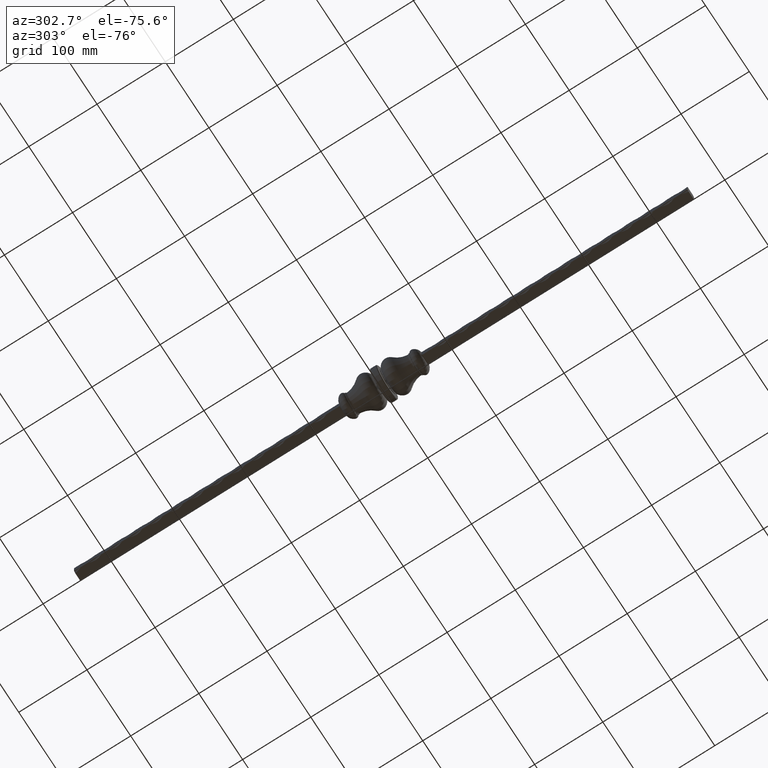
[diagram: clean part render]
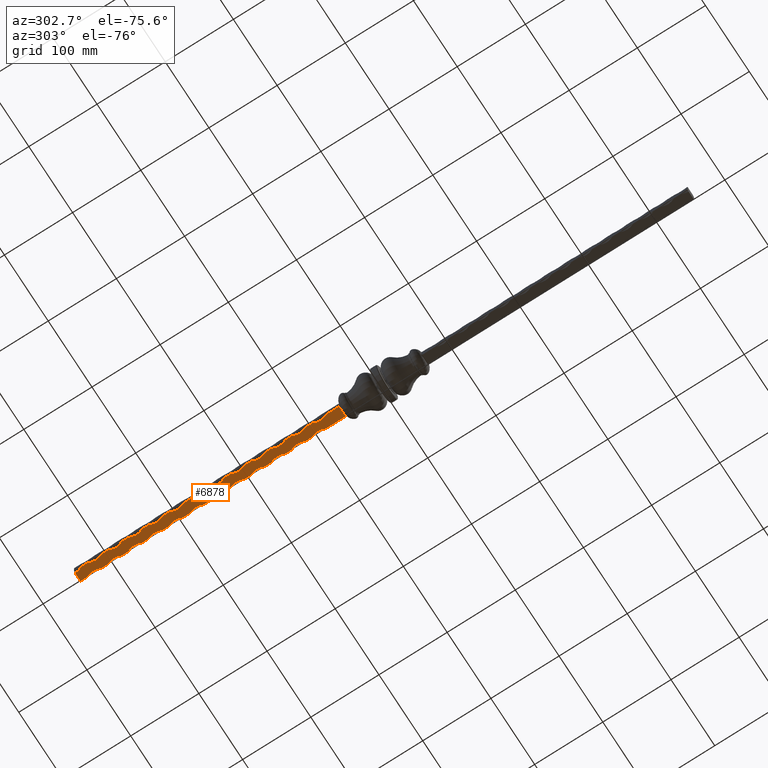
[diagram: same view with one face highlighted and labeled with its STEP entity id]
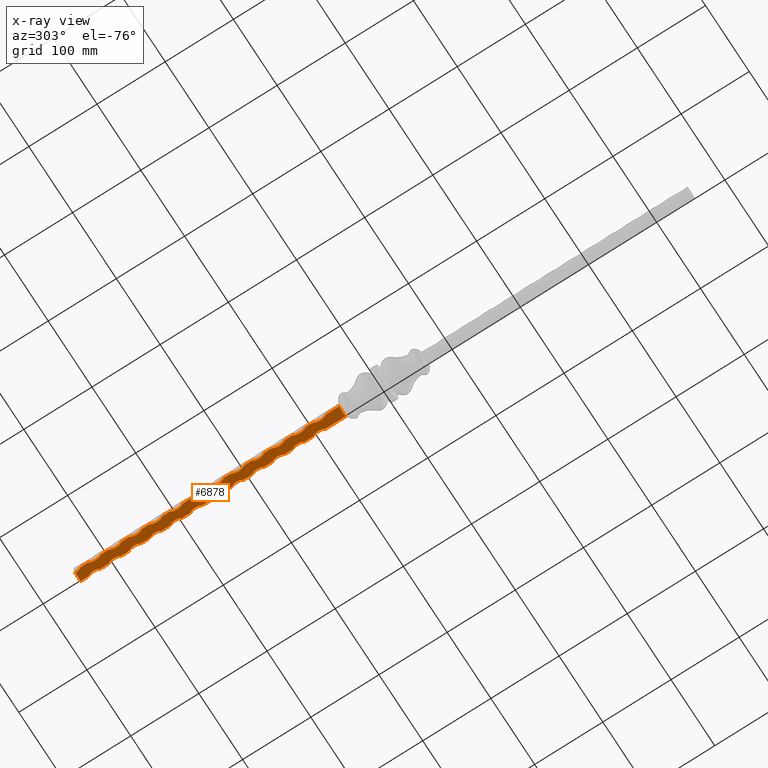
[diagram: x-ray of the same camera — body ghosted, the highlighted face saturated]
A machine part, auxiliary view. The second image highlights one B-rep face of the part: STEP entity #6878.
The next image is the same camera in x-ray: the body ghosted, the highlighted face saturated — about 0% of this face is hidden behind the body in this view.
In plain terms, the highlighted planar face has unit normal (0, 0, 1).
Its self-contained STEP definition (entity closure, byte-faithful):
#29 = VERTEX_POINT ( 'NONE', #25393 ) ;
#81 = CARTESIAN_POINT ( 'NONE',  ( 26.25000000000003197, 370.0000000000000000, -7.500000000000000000 ) ) ;
#180 = ORIENTED_EDGE ( 'NONE', *, *, #19650, .T. ) ;
#199 = CARTESIAN_POINT ( 'NONE',  ( -7.500000000000000000, 169.9999999999999716, -7.500000000000000000 ) ) ;
#213 = LINE ( 'NONE', #1538, #23224 ) ;
#237 = ORIENTED_EDGE ( 'NONE', *, *, #9193, .F. ) ;
#349 = VECTOR ( 'NONE', #23992, 1000.000000000000000 ) ;
#421 = CIRCLE ( 'NONE', #2246, 21.25000000000003553 ) ;
#475 = ORIENTED_EDGE ( 'NONE', *, *, #20177, .F. ) ;
#479 = CIRCLE ( 'NONE', #1123, 21.25000000000003553 ) ;
#539 = CARTESIAN_POINT ( 'NONE',  ( -5.587195937505667231, 61.12594891179882239, -7.500000000000001776 ) ) ;
#550 = LINE ( 'NONE', #20431, #11000 ) ;
#555 = ORIENTED_EDGE ( 'NONE', *, *, #1211, .T. ) ;
#562 = DIRECTION ( 'NONE',  ( 1.000000000000000000, 0.000000000000000000, 0.000000000000000000 ) ) ;
#617 = CARTESIAN_POINT ( 'NONE',  ( -26.25000000000003197, 120.0000000000000000, -7.500000000000000000 ) ) ;
#673 = VECTOR ( 'NONE', #21003, 1000.000000000000000 ) ;
#694 = CARTESIAN_POINT ( 'NONE',  ( -7.500000000000000000, 260.0000000000000000, -7.500000000000000000 ) ) ;
#704 = CIRCLE ( 'NONE', #5637, 21.25000000000003197 ) ;
#738 = CARTESIAN_POINT ( 'NONE',  ( 7.500000000000000000, 450.0000000000000000, -7.500000000000001776 ) ) ;
#852 = ORIENTED_EDGE ( 'NONE', *, *, #15751, .F. ) ;
#857 = ORIENTED_EDGE ( 'NONE', *, *, #27648, .F. ) ;
#992 = AXIS2_PLACEMENT_3D ( 'NONE', #14732, #27848, #23181 ) ;
#1035 = DIRECTION ( 'NONE',  ( -0.000000000000000000, -0.000000000000000000, -1.000000000000000000 ) ) ;
#1123 = AXIS2_PLACEMENT_3D ( 'NONE', #81, #15170, #2441 ) ;
#1131 = ORIENTED_EDGE ( 'NONE', *, *, #23934, .T. ) ;
#1146 = CARTESIAN_POINT ( 'NONE',  ( -4.920602893082760332, 61.20000000000000284, -7.500000000000002665 ) ) ;
#1179 = DIRECTION ( 'NONE',  ( 1.000000000000000000, 0.000000000000000000, 0.000000000000000000 ) ) ;
#1205 = DIRECTION ( 'NONE',  ( 0.000000000000000000, 0.000000000000000000, 1.000000000000000000 ) ) ;
#1211 = EDGE_CURVE ( 'NONE', #25127, #10585, #18209, .T. ) ;
#1291 = ORIENTED_EDGE ( 'NONE', *, *, #16687, .F. ) ;
#1349 = CARTESIAN_POINT ( 'NONE',  ( -7.500000000000001776, 450.0000000000000000, -7.500000000000001776 ) ) ;
#1365 = DIRECTION ( 'NONE',  ( 0.000000000000000000, 0.000000000000000000, 1.000000000000000000 ) ) ;
#1395 = DIRECTION ( 'NONE',  ( 1.000000000000000000, 0.000000000000000000, 0.000000000000000000 ) ) ;
#1456 = ORIENTED_EDGE ( 'NONE', *, *, #11879, .F. ) ;
#1538 = CARTESIAN_POINT ( 'NONE',  ( 7.500000000000000000, 450.0000000000000000, -7.500000000000001776 ) ) ;
#1592 = VECTOR ( 'NONE', #17915, 1000.000000000000000 ) ;
#1603 = CARTESIAN_POINT ( 'NONE',  ( -7.500000000000000000, 319.9999999999999432, -7.500000000000000000 ) ) ;
#1630 = DIRECTION ( 'NONE',  ( -1.000000000000000000, -0.000000000000000000, -0.000000000000000000 ) ) ;
#1652 = CARTESIAN_POINT ( 'NONE',  ( -7.500000000000000000, 229.9999999999999716, -7.500000000000000000 ) ) ;
#1719 = CARTESIAN_POINT ( 'NONE',  ( -7.500000000000000000, 159.9999999999999716, -7.500000000000000000 ) ) ;
#1749 = ORIENTED_EDGE ( 'NONE', *, *, #12424, .T. ) ;
#1804 = ORIENTED_EDGE ( 'NONE', *, *, #14973, .T. ) ;
#1880 = CIRCLE ( 'NONE', #13794, 21.25000000000003197 ) ;
#2005 = VERTEX_POINT ( 'NONE', #14115 ) ;
#2156 = CARTESIAN_POINT ( 'NONE',  ( -7.500000000000001776, 450.0000000000000000, -7.500000000000001776 ) ) ;
#2207 = EDGE_CURVE ( 'NONE', #27221, #12562, #3692, .T. ) ;
#2231 = EDGE_CURVE ( 'NONE', #19479, #27221, #20254, .T. ) ;
#2246 = AXIS2_PLACEMENT_3D ( 'NONE', #8788, #19730, #8988 ) ;
#2250 = CARTESIAN_POINT ( 'NONE',  ( 7.499999999999996447, 290.0000000000000568, -7.500000000000000000 ) ) ;
#2322 = ORIENTED_EDGE ( 'NONE', *, *, #23166, .T. ) ;
#2334 = CARTESIAN_POINT ( 'NONE',  ( 26.25000000000003197, 220.0000000000000000, -7.500000000000000000 ) ) ;
#2353 = CARTESIAN_POINT ( 'NONE',  ( 7.499999999999996447, 300.0000000000000000, -7.500000000000000000 ) ) ;
#2367 = VERTEX_POINT ( 'NONE', #3515 ) ;
#2373 = AXIS2_PLACEMENT_3D ( 'NONE', #18218, #16063, #11741 ) ;
#2441 = DIRECTION ( 'NONE',  ( 1.000000000000000000, 0.000000000000000000, 0.000000000000000000 ) ) ;
#2523 = DIRECTION ( 'NONE',  ( -1.000000000000000000, -0.000000000000000000, -0.000000000000000000 ) ) ;
#2536 = VECTOR ( 'NONE', #24158, 1000.000000000000000 ) ;
#2547 = VECTOR ( 'NONE', #19387, 1000.000000000000000 ) ;
#2621 = ORIENTED_EDGE ( 'NONE', *, *, #5342, .T. ) ;
#2712 = EDGE_CURVE ( 'NONE', #7540, #2882, #6403, .T. ) ;
#2770 = CARTESIAN_POINT ( 'NONE',  ( -7.500000000000001776, 450.0000000000000000, -7.500000000000001776 ) ) ;
#2825 = DIRECTION ( 'NONE',  ( 0.000000000000000000, 0.000000000000000000, 1.000000000000000000 ) ) ;
#2874 =( BOUNDED_CURVE ( )  B_SPLINE_CURVE ( 3, ( #10570, #20196, #17527, #22410 ),
 .UNSPECIFIED., .F., .F. ) 
 B_SPLINE_CURVE_WITH_KNOTS ( ( 4, 4 ),
 ( 4.712388980384689674, 4.961445626988185253 ),
 .UNSPECIFIED. ) 
 CURVE ( )  GEOMETRIC_REPRESENTATION_ITEM ( )  RATIONAL_B_SPLINE_CURVE ( ( 1.000000000000000000, 0.9948375753481484285, 0.9948375753481484285, 1.000000000000000000 ) ) 
 REPRESENTATION_ITEM ( '' )  );
#2882 = VERTEX_POINT ( 'NONE', #25537 ) ;
#2981 = DIRECTION ( 'NONE',  ( -0.000000000000000000, -0.000000000000000000, -1.000000000000000000 ) ) ;
#3074 = EDGE_CURVE ( 'NONE', #16910, #13512, #27402, .T. ) ;
#3313 = VERTEX_POINT ( 'NONE', #27507 ) ;
#3361 = CARTESIAN_POINT ( 'NONE',  ( -7.500000000000000000, 139.9999999999999716, -7.500000000000000000 ) ) ;
#3387 = CARTESIAN_POINT ( 'NONE',  ( -7.500000000000001776, 450.0000000000000000, -7.500000000000001776 ) ) ;
#3401 = DIRECTION ( 'NONE',  ( 0.000000000000000000, 0.000000000000000000, 1.000000000000000000 ) ) ;
#3468 = CARTESIAN_POINT ( 'NONE',  ( -7.500000000000001776, 450.0000000000000000, -7.500000000000001776 ) ) ;
#3494 = CARTESIAN_POINT ( 'NONE',  ( 7.499999999999996447, 180.0000000000000000, -7.500000000000000000 ) ) ;
#3515 = CARTESIAN_POINT ( 'NONE',  ( -7.500000000000000000, 439.9999999999999432, -7.500000000000000000 ) ) ;
#3600 = VERTEX_POINT ( 'NONE', #19937 ) ;
#3657 = ORIENTED_EDGE ( 'NONE', *, *, #7620, .T. ) ;
#3684 = CARTESIAN_POINT ( 'NONE',  ( -4.580747457130979861, 61.19999999999999574, -7.500000000000001776 ) ) ;
#3692 = LINE ( 'NONE', #7138, #14154 ) ;
#3841 = EDGE_CURVE ( 'NONE', #15613, #25270, #11727, .T. ) ;
#3891 = CIRCLE ( 'NONE', #13698, 21.25000000000003553 ) ;
#4092 = CARTESIAN_POINT ( 'NONE',  ( -7.500000000000000000, 250.0000000000000000, -7.500000000000000000 ) ) ;
#4123 = CARTESIAN_POINT ( 'NONE',  ( -7.500000000000000000, 280.0000000000000000, -7.500000000000000000 ) ) ;
#4184 = DIRECTION ( 'NONE',  ( -0.000000000000000000, -1.000000000000000000, -0.000000000000000000 ) ) ;
#4301 = EDGE_CURVE ( 'NONE', #9834, #27789, #25985, .T. ) ;
#4349 = AXIS2_PLACEMENT_3D ( 'NONE', #18482, #11812, #5375 ) ;
#4405 = EDGE_CURVE ( 'NONE', #22284, #21953, #2874, .T. ) ;
#4526 = ORIENTED_EDGE ( 'NONE', *, *, #20369, .F. ) ;
#4752 = CARTESIAN_POINT ( 'NONE',  ( 7.500000000000000000, 450.0000000000000000, -7.500000000000001776 ) ) ;
#4911 = EDGE_CURVE ( 'NONE', #3600, #7867, #10997, .T. ) ;
#4938 = EDGE_CURVE ( 'NONE', #25270, #23416, #27974, .T. ) ;
#5131 = DIRECTION ( 'NONE',  ( -0.000000000000000000, -1.000000000000000000, -0.000000000000000000 ) ) ;
#5164 = CARTESIAN_POINT ( 'NONE',  ( -7.500000000000001776, 60.78303146263086632, -7.500000000000001776 ) ) ;
#5253 = EDGE_CURVE ( 'NONE', #29, #11411, #6813, .T. ) ;
#5304 = EDGE_CURVE ( 'NONE', #14899, #15613, #26646, .T. ) ;
#5342 = EDGE_CURVE ( 'NONE', #27110, #9834, #3891, .T. ) ;
#5375 = DIRECTION ( 'NONE',  ( 1.000000000000000000, -5.224578939412493849E-15, 0.000000000000000000 ) ) ;
#5377 = AXIS2_PLACEMENT_3D ( 'NONE', #2334, #17420, #6696 ) ;
#5389 = DIRECTION ( 'NONE',  ( -0.000000000000000000, -0.000000000000000000, -1.000000000000000000 ) ) ;
#5425 = CIRCLE ( 'NONE', #992, 21.25000000000003197 ) ;
#5457 = VECTOR ( 'NONE', #13220, 1000.000000000000000 ) ;
#5572 = DIRECTION ( 'NONE',  ( -0.000000000000000000, -1.000000000000000000, -0.000000000000000000 ) ) ;
#5621 = EDGE_CURVE ( 'NONE', #8590, #2005, #11793, .T. ) ;
#5637 = AXIS2_PLACEMENT_3D ( 'NONE', #24864, #11977, #27168 ) ;
#5662 = AXIS2_PLACEMENT_3D ( 'NONE', #14561, #20720, #7960 ) ;
#5760 = CARTESIAN_POINT ( 'NONE',  ( 4.580747457131012723, 61.19999999999999574, -7.500000000000001776 ) ) ;
#5776 = ORIENTED_EDGE ( 'NONE', *, *, #2712, .F. ) ;
#5781 = VECTOR ( 'NONE', #25132, 1000.000000000000000 ) ;
#5817 =( BOUNDED_CURVE ( )  B_SPLINE_CURVE ( 3, ( #18366, #20391, #24979, #18179 ),
 .UNSPECIFIED., .F., .F. ) 
 B_SPLINE_CURVE_WITH_KNOTS ( ( 4, 4 ),
 ( 1.227777006333202525, 1.321739680191400979 ),
 .UNSPECIFIED. ) 
 CURVE ( )  GEOMETRIC_REPRESENTATION_ITEM ( )  RATIONAL_B_SPLINE_CURVE ( ( 1.000000000000000000, 0.9992643866483558179, 0.9992643866483558179, 1.000000000000000000 ) ) 
 REPRESENTATION_ITEM ( '' )  );
#5831 = ORIENTED_EDGE ( 'NONE', *, *, #27378, .F. ) ;
#5880 = CARTESIAN_POINT ( 'NONE',  ( 7.499999999999996447, 120.0000000000000000, -7.500000000000000000 ) ) ;
#5895 = ORIENTED_EDGE ( 'NONE', *, *, #20809, .T. ) ;
#5981 = VECTOR ( 'NONE', #14858, 1000.000000000000000 ) ;
#6053 = CARTESIAN_POINT ( 'NONE',  ( -5.000000000000000888, 450.0000000000000000, -7.500000000000000000 ) ) ;
#6099 = CARTESIAN_POINT ( 'NONE',  ( 7.499999999999996447, 350.0000000000000000, -7.500000000000000000 ) ) ;
#6117 = VERTEX_POINT ( 'NONE', #19405 ) ;
#6244 = VECTOR ( 'NONE', #5572, 1000.000000000000000 ) ;
#6275 = CARTESIAN_POINT ( 'NONE',  ( 7.500000000000000000, 450.0000000000000000, -7.500000000000001776 ) ) ;
#6286 = VERTEX_POINT ( 'NONE', #26963 ) ;
#6333 = FACE_OUTER_BOUND ( 'NONE', #19917, .T. ) ;
#6359 =( BOUNDED_CURVE ( )  B_SPLINE_CURVE ( 3, ( #27403, #23189, #1146, #3684 ),
 .UNSPECIFIED., .F., .F. ) 
 B_SPLINE_CURVE_WITH_KNOTS ( ( 4, 4 ),
 ( 4.463332333781193206, 4.712388980384689674 ),
 .UNSPECIFIED. ) 
 CURVE ( )  GEOMETRIC_REPRESENTATION_ITEM ( )  RATIONAL_B_SPLINE_CURVE ( ( 1.000000000000000000, 0.9948375753481483175, 0.9948375753481483175, 1.000000000000000000 ) ) 
 REPRESENTATION_ITEM ( '' )  );
#6369 = CARTESIAN_POINT ( 'NONE',  ( 7.499999999999996447, 360.0000000000000000, -7.500000000000000000 ) ) ;
#6403 = LINE ( 'NONE', #3387, #16494 ) ;
#6521 = ORIENTED_EDGE ( 'NONE', *, *, #18581, .F. ) ;
#6530 = CARTESIAN_POINT ( 'NONE',  ( 7.500000000000000000, 450.0000000000000000, -7.500000000000001776 ) ) ;
#6559 = CARTESIAN_POINT ( 'NONE',  ( -7.500000000000001776, 450.0000000000000000, -7.500000000000001776 ) ) ;
#6696 = DIRECTION ( 'NONE',  ( 1.000000000000000000, 0.000000000000000000, 0.000000000000000000 ) ) ;
#6813 = LINE ( 'NONE', #2770, #14233 ) ;
#6814 = EDGE_CURVE ( 'NONE', #15205, #7540, #8686, .T. ) ;
#6830 = VERTEX_POINT ( 'NONE', #14167 ) ;
#6878 = ADVANCED_FACE ( 'NONE', ( #6333 ), #16505, .F. ) ;
#6968 = ORIENTED_EDGE ( 'NONE', *, *, #17297, .T. ) ;
#7081 = LINE ( 'NONE', #6275, #27406 ) ;
#7122 = CARTESIAN_POINT ( 'NONE',  ( 7.499999999999996447, 169.9999999999999716, -7.500000000000000000 ) ) ;
#7138 = CARTESIAN_POINT ( 'NONE',  ( -7.500000000000001776, 450.0000000000000000, -7.500000000000001776 ) ) ;
#7233 = EDGE_CURVE ( 'NONE', #27789, #21953, #5817, .T. ) ;
#7407 = VERTEX_POINT ( 'NONE', #17213 ) ;
#7421 = LINE ( 'NONE', #4752, #21975 ) ;
#7428 = VECTOR ( 'NONE', #24511, 1000.000000000000000 ) ;
#7487 = DIRECTION ( 'NONE',  ( 1.000000000000000000, 0.000000000000000000, 0.000000000000000000 ) ) ;
#7516 = DIRECTION ( 'NONE',  ( 1.000000000000000000, 0.000000000000000000, 0.000000000000000000 ) ) ;
#7517 = EDGE_CURVE ( 'NONE', #19004, #7407, #7972, .T. ) ;
#7536 = VERTEX_POINT ( 'NONE', #16450 ) ;
#7540 = VERTEX_POINT ( 'NONE', #3361 ) ;
#7591 = VERTEX_POINT ( 'NONE', #16265 ) ;
#7609 = LINE ( 'NONE', #16792, #14335 ) ;
#7618 = DIRECTION ( 'NONE',  ( 1.000000000000000000, 0.000000000000000000, 0.000000000000000000 ) ) ;
#7620 = EDGE_CURVE ( 'NONE', #23915, #16910, #213, .T. ) ;
#7645 = ORIENTED_EDGE ( 'NONE', *, *, #24360, .F. ) ;
#7763 = CARTESIAN_POINT ( 'NONE',  ( -26.25000000000003197, 270.0000000000000000, -7.500000000000000000 ) ) ;
#7817 = DIRECTION ( 'NONE',  ( -0.000000000000000000, -1.000000000000000000, -0.000000000000000000 ) ) ;
#7867 = VERTEX_POINT ( 'NONE', #19655 ) ;
#7948 = AXIS2_PLACEMENT_3D ( 'NONE', #14216, #1365, #12156 ) ;
#7960 = DIRECTION ( 'NONE',  ( 1.000000000000000000, 0.000000000000000000, 0.000000000000000000 ) ) ;
#7972 = LINE ( 'NONE', #16171, #27647 ) ;
#7976 = CARTESIAN_POINT ( 'NONE',  ( 7.499999999999996447, 260.0000000000000000, -7.500000000000000000 ) ) ;
#8040 = DIRECTION ( 'NONE',  ( -0.000000000000000000, -1.000000000000000000, -0.000000000000000000 ) ) ;
#8041 = ORIENTED_EDGE ( 'NONE', *, *, #11379, .F. ) ;
#8101 = ORIENTED_EDGE ( 'NONE', *, *, #2207, .F. ) ;
#8543 = CARTESIAN_POINT ( 'NONE',  ( -4.580747457130979861, 61.19999999999999574, -7.500000000000001776 ) ) ;
#8590 = VERTEX_POINT ( 'NONE', #7122 ) ;
#8686 = CIRCLE ( 'NONE', #14070, 21.25000000000003197 ) ;
#8773 = LINE ( 'NONE', #18779, #24031 ) ;
#8788 = CARTESIAN_POINT ( 'NONE',  ( 26.25000000000003197, 250.0000000000000000, -7.500000000000000000 ) ) ;
#8822 = LINE ( 'NONE', #16083, #5781 ) ;
#8929 = EDGE_CURVE ( 'NONE', #24354, #7536, #21504, .T. ) ;
#8988 = DIRECTION ( 'NONE',  ( 1.000000000000000000, 0.000000000000000000, 0.000000000000000000 ) ) ;
#9116 = DIRECTION ( 'NONE',  ( -0.000000000000000000, -0.000000000000000000, -1.000000000000000000 ) ) ;
#9171 = VERTEX_POINT ( 'NONE', #8543 ) ;
#9174 = DIRECTION ( 'NONE',  ( -0.000000000000000000, -1.000000000000000000, -0.000000000000000000 ) ) ;
#9185 = LINE ( 'NONE', #15753, #5457 ) ;
#9193 = EDGE_CURVE ( 'NONE', #2367, #17965, #23871, .T. ) ;
#9373 = CARTESIAN_POINT ( 'NONE',  ( 7.499999999999996447, 90.00000000000002842, -7.500000000000000000 ) ) ;
#9436 = ORIENTED_EDGE ( 'NONE', *, *, #25810, .T. ) ;
#9441 = CARTESIAN_POINT ( 'NONE',  ( 7.499999999999996447, 420.0000000000000000, -7.500000000000000000 ) ) ;
#9718 = ORIENTED_EDGE ( 'NONE', *, *, #16577, .T. ) ;
#9736 = CARTESIAN_POINT ( 'NONE',  ( 26.25000000000003197, 100.0000000000000284, -7.500000000000000000 ) ) ;
#9746 = ORIENTED_EDGE ( 'NONE', *, *, #17011, .F. ) ;
#9775 = CARTESIAN_POINT ( 'NONE',  ( 7.499999999999996447, 329.9999999999999432, -7.500000000000000000 ) ) ;
#9831 = DIRECTION ( 'NONE',  ( 1.000000000000000000, 0.000000000000000000, 0.000000000000000000 ) ) ;
#9834 = VERTEX_POINT ( 'NONE', #9373 ) ;
#9939 = DIRECTION ( 'NONE',  ( 1.000000000000000000, 0.000000000000000000, 0.000000000000000000 ) ) ;
#10047 = AXIS2_PLACEMENT_3D ( 'NONE', #15899, #22658, #1179 ) ;
#10102 = VECTOR ( 'NONE', #13659, 1000.000000000000000 ) ;
#10144 = ORIENTED_EDGE ( 'NONE', *, *, #13297, .T. ) ;
#10196 = ORIENTED_EDGE ( 'NONE', *, *, #5621, .T. ) ;
#10413 = CIRCLE ( 'NONE', #19483, 21.25000000000003553 ) ;
#10570 = CARTESIAN_POINT ( 'NONE',  ( 4.580747457131012723, 61.19999999999999574, -7.500000000000001776 ) ) ;
#10585 = VERTEX_POINT ( 'NONE', #23626 ) ;
#10593 = DIRECTION ( 'NONE',  ( -0.000000000000000000, -1.000000000000000000, -0.000000000000000000 ) ) ;
#10997 = CIRCLE ( 'NONE', #22213, 21.25000000000003197 ) ;
#11000 = VECTOR ( 'NONE', #27235, 1000.000000000000000 ) ;
#11358 = CIRCLE ( 'NONE', #7948, 21.25000000000003553 ) ;
#11379 = EDGE_CURVE ( 'NONE', #6830, #17461, #9185, .T. ) ;
#11411 = VERTEX_POINT ( 'NONE', #17894 ) ;
#11583 = EDGE_CURVE ( 'NONE', #6286, #12740, #13870, .T. ) ;
#11727 = LINE ( 'NONE', #1349, #5981 ) ;
#11741 = DIRECTION ( 'NONE',  ( 1.000000000000000000, 0.000000000000000000, 0.000000000000000000 ) ) ;
#11756 = LINE ( 'NONE', #22240, #1592 ) ;
#11793 = CIRCLE ( 'NONE', #26826, 21.25000000000003553 ) ;
#11812 = DIRECTION ( 'NONE',  ( -0.000000000000000000, -0.000000000000000000, -1.000000000000000000 ) ) ;
#11879 = EDGE_CURVE ( 'NONE', #7536, #24634, #704, .T. ) ;
#11977 = DIRECTION ( 'NONE',  ( -0.000000000000000000, -0.000000000000000000, -1.000000000000000000 ) ) ;
#12097 = CARTESIAN_POINT ( 'NONE',  ( 26.25000000000003197, 190.0000000000000000, -7.500000000000000000 ) ) ;
#12156 = DIRECTION ( 'NONE',  ( 1.000000000000000000, 0.000000000000000000, 0.000000000000000000 ) ) ;
#12251 = VECTOR ( 'NONE', #2523, 1000.000000000000000 ) ;
#12424 = EDGE_CURVE ( 'NONE', #16488, #7591, #25747, .T. ) ;
#12547 = CARTESIAN_POINT ( 'NONE',  ( 7.499999999999996447, 200.0000000000000000, -7.500000000000000000 ) ) ;
#12562 = VERTEX_POINT ( 'NONE', #20521 ) ;
#12578 = DIRECTION ( 'NONE',  ( 1.000000000000000000, 0.000000000000000000, 0.000000000000000000 ) ) ;
#12687 = CIRCLE ( 'NONE', #4349, 21.25000000000003197 ) ;
#12740 = VERTEX_POINT ( 'NONE', #5880 ) ;
#13010 = VERTEX_POINT ( 'NONE', #3494 ) ;
#13162 = VECTOR ( 'NONE', #26982, 1000.000000000000000 ) ;
#13180 = VERTEX_POINT ( 'NONE', #12547 ) ;
#13181 = CARTESIAN_POINT ( 'NONE',  ( -7.500000000000001776, 450.0000000000000000, -7.500000000000001776 ) ) ;
#13220 = DIRECTION ( 'NONE',  ( -0.000000000000000000, -1.000000000000000000, -0.000000000000000000 ) ) ;
#13280 = EDGE_CURVE ( 'NONE', #18593, #3600, #13978, .T. ) ;
#13297 = EDGE_CURVE ( 'NONE', #3313, #23915, #479, .T. ) ;
#13468 = CARTESIAN_POINT ( 'NONE',  ( -7.500000000000000000, 430.0000000000000000, -7.500000000000000000 ) ) ;
#13512 = VERTEX_POINT ( 'NONE', #9775 ) ;
#13659 = DIRECTION ( 'NONE',  ( -0.000000000000000000, -1.000000000000000000, -0.000000000000000000 ) ) ;
#13698 = AXIS2_PLACEMENT_3D ( 'NONE', #9736, #22899, #7487 ) ;
#13794 = AXIS2_PLACEMENT_3D ( 'NONE', #617, #9116, #17942 ) ;
#13851 = CARTESIAN_POINT ( 'NONE',  ( -7.500000000000000000, 380.0000000000000000, -7.500000000000000000 ) ) ;
#13870 = CIRCLE ( 'NONE', #25102, 21.25000000000003553 ) ;
#13871 = CARTESIAN_POINT ( 'NONE',  ( -7.500000000000001776, 450.0000000000000000, -7.500000000000001776 ) ) ;
#13883 = ORIENTED_EDGE ( 'NONE', *, *, #14441, .T. ) ;
#13978 = LINE ( 'NONE', #23933, #15331 ) ;
#13998 = CARTESIAN_POINT ( 'NONE',  ( 7.500000000000000000, 60.78303146263086632, -7.500000000000001776 ) ) ;
#14005 = ORIENTED_EDGE ( 'NONE', *, *, #13280, .F. ) ;
#14017 = CIRCLE ( 'NONE', #25228, 21.25000000000003197 ) ;
#14065 = CARTESIAN_POINT ( 'NONE',  ( 7.499999999999996447, 230.0000000000000000, -7.500000000000000000 ) ) ;
#14070 = AXIS2_PLACEMENT_3D ( 'NONE', #24810, #1035, #20597 ) ;
#14078 = DIRECTION ( 'NONE',  ( -0.000000000000000000, -0.000000000000000000, -1.000000000000000000 ) ) ;
#14115 = CARTESIAN_POINT ( 'NONE',  ( 7.499999999999996447, 149.9999999999999716, -7.500000000000000000 ) ) ;
#14154 = VECTOR ( 'NONE', #22251, 1000.000000000000000 ) ;
#14167 = CARTESIAN_POINT ( 'NONE',  ( -7.500000000000000000, 80.00000000000001421, -7.500000000000000000 ) ) ;
#14185 = EDGE_CURVE ( 'NONE', #6117, #13180, #25165, .T. ) ;
#14216 = CARTESIAN_POINT ( 'NONE',  ( 26.25000000000003197, 310.0000000000000000, -7.500000000000000000 ) ) ;
#14233 = VECTOR ( 'NONE', #5131, 1000.000000000000000 ) ;
#14265 = CARTESIAN_POINT ( 'NONE',  ( 7.499999999999996447, 320.0000000000000000, -7.500000000000000000 ) ) ;
#14335 = VECTOR ( 'NONE', #1630, 1000.000000000000000 ) ;
#14441 = EDGE_CURVE ( 'NONE', #19664, #19359, #421, .T. ) ;
#14561 = CARTESIAN_POINT ( 'NONE',  ( -26.25000000000003197, 90.00000000000002842, -7.500000000000000000 ) ) ;
#14732 = CARTESIAN_POINT ( 'NONE',  ( -26.25000000000003197, 329.9999999999999432, -7.500000000000000000 ) ) ;
#14858 = DIRECTION ( 'NONE',  ( -0.000000000000000000, -1.000000000000000000, -0.000000000000000000 ) ) ;
#14875 = DIRECTION ( 'NONE',  ( -0.000000000000000000, -1.000000000000000000, -0.000000000000000000 ) ) ;
#14899 = VERTEX_POINT ( 'NONE', #4123 ) ;
#14970 = ORIENTED_EDGE ( 'NONE', *, *, #17675, .T. ) ;
#14973 = EDGE_CURVE ( 'NONE', #18683, #17461, #15704, .T. ) ;
#15040 = ORIENTED_EDGE ( 'NONE', *, *, #3074, .T. ) ;
#15123 = EDGE_CURVE ( 'NONE', #26531, #16488, #8822, .T. ) ;
#15170 = DIRECTION ( 'NONE',  ( 0.000000000000000000, 0.000000000000000000, 1.000000000000000000 ) ) ;
#15191 = CARTESIAN_POINT ( 'NONE',  ( 26.25000000000003197, 159.9999999999999716, -7.500000000000000000 ) ) ;
#15205 = VERTEX_POINT ( 'NONE', #1719 ) ;
#15217 = ORIENTED_EDGE ( 'NONE', *, *, #6814, .F. ) ;
#15299 = VERTEX_POINT ( 'NONE', #23509 ) ;
#15308 = ORIENTED_EDGE ( 'NONE', *, *, #16880, .T. ) ;
#15331 = VECTOR ( 'NONE', #21918, 1000.000000000000000 ) ;
#15379 = ORIENTED_EDGE ( 'NONE', *, *, #25896, .F. ) ;
#15517 = CARTESIAN_POINT ( 'NONE',  ( -7.500000000000001776, 450.0000000000000000, -7.500000000000001776 ) ) ;
#15613 = VERTEX_POINT ( 'NONE', #694 ) ;
#15648 = CARTESIAN_POINT ( 'NONE',  ( -7.500000000000000000, 370.0000000000000000, -7.500000000000000000 ) ) ;
#15704 =( BOUNDED_CURVE ( )  B_SPLINE_CURVE ( 3, ( #539, #15894, #20073, #5164 ),
 .UNSPECIFIED., .F., .F. ) 
 B_SPLINE_CURVE_WITH_KNOTS ( ( 4, 4 ),
 ( 1.819852973398392360, 1.913815647256592145 ),
 .UNSPECIFIED. ) 
 CURVE ( )  GEOMETRIC_REPRESENTATION_ITEM ( )  RATIONAL_B_SPLINE_CURVE ( ( 1.000000000000000000, 0.9992643866483557069, 0.9992643866483557069, 1.000000000000000000 ) ) 
 REPRESENTATION_ITEM ( '' )  );
#15709 = EDGE_CURVE ( 'NONE', #7407, #16327, #20634, .T. ) ;
#15751 = EDGE_CURVE ( 'NONE', #12562, #18593, #5425, .T. ) ;
#15753 = CARTESIAN_POINT ( 'NONE',  ( -7.500000000000001776, 450.0000000000000000, -7.500000000000001776 ) ) ;
#15894 = CARTESIAN_POINT ( 'NONE',  ( -6.233702365769635989, 61.02929897039598472, -7.500000000000000888 ) ) ;
#15899 = CARTESIAN_POINT ( 'NONE',  ( -26.25000000000003197, 240.0000000000000000, -7.500000000000000000 ) ) ;
#16019 = ORIENTED_EDGE ( 'NONE', *, *, #2231, .F. ) ;
#16057 = DIRECTION ( 'NONE',  ( 1.000000000000000000, 0.000000000000000000, 0.000000000000000000 ) ) ;
#16063 = DIRECTION ( 'NONE',  ( 0.000000000000000000, 0.000000000000000000, 1.000000000000000000 ) ) ;
#16083 = CARTESIAN_POINT ( 'NONE',  ( 7.500000000000000000, 450.0000000000000000, -7.500000000000001776 ) ) ;
#16087 = CARTESIAN_POINT ( 'NONE',  ( -26.25000000000003197, 300.0000000000000000, -7.500000000000000000 ) ) ;
#16171 = CARTESIAN_POINT ( 'NONE',  ( 7.500000000000000000, 450.0000000000000000, -7.500000000000001776 ) ) ;
#16235 = ORIENTED_EDGE ( 'NONE', *, *, #4938, .F. ) ;
#16265 = CARTESIAN_POINT ( 'NONE',  ( 7.499999999999996447, 270.0000000000000000, -7.500000000000000000 ) ) ;
#16327 = VERTEX_POINT ( 'NONE', #25199 ) ;
#16361 = EDGE_CURVE ( 'NONE', #18683, #9171, #6359, .T. ) ;
#16450 = CARTESIAN_POINT ( 'NONE',  ( -7.500000000000000000, 400.0000000000000000, -7.500000000000000000 ) ) ;
#16488 = VERTEX_POINT ( 'NONE', #2250 ) ;
#16494 = VECTOR ( 'NONE', #7817, 1000.000000000000000 ) ;
#16505 = PLANE ( 'NONE',  #25561 ) ;
#16517 = ORIENTED_EDGE ( 'NONE', *, *, #24139, .F. ) ;
#16577 = EDGE_CURVE ( 'NONE', #7591, #19664, #26795, .T. ) ;
#16622 = ORIENTED_EDGE ( 'NONE', *, *, #21022, .T. ) ;
#16685 = CARTESIAN_POINT ( 'NONE',  ( -7.500000000000001776, 450.0000000000000000, -7.500000000000001776 ) ) ;
#16687 = EDGE_CURVE ( 'NONE', #23416, #22430, #18865, .T. ) ;
#16703 = VECTOR ( 'NONE', #17228, 1000.000000000000000 ) ;
#16792 = CARTESIAN_POINT ( 'NONE',  ( -7.500000000000001776, 61.19999999999997442, -7.500000000000001776 ) ) ;
#16823 = CARTESIAN_POINT ( 'NONE',  ( -7.500000000000001776, 450.0000000000000000, -7.500000000000001776 ) ) ;
#16880 = EDGE_CURVE ( 'NONE', #12740, #27110, #17544, .T. ) ;
#16909 = DIRECTION ( 'NONE',  ( -0.000000000000000000, -1.000000000000000000, -0.000000000000000000 ) ) ;
#16910 = VERTEX_POINT ( 'NONE', #6099 ) ;
#17011 = EDGE_CURVE ( 'NONE', #7867, #14899, #26459, .T. ) ;
#17213 = CARTESIAN_POINT ( 'NONE',  ( 7.499999999999996447, 410.0000000000000568, -7.500000000000000000 ) ) ;
#17219 = AXIS2_PLACEMENT_3D ( 'NONE', #24005, #17491, #7516 ) ;
#17228 = DIRECTION ( 'NONE',  ( -0.000000000000000000, -1.000000000000000000, -0.000000000000000000 ) ) ;
#17238 = DIRECTION ( 'NONE',  ( -0.000000000000000000, -1.000000000000000000, -0.000000000000000000 ) ) ;
#17297 = EDGE_CURVE ( 'NONE', #16327, #3313, #8773, .T. ) ;
#17420 = DIRECTION ( 'NONE',  ( 0.000000000000000000, 0.000000000000000000, 1.000000000000000000 ) ) ;
#17461 = VERTEX_POINT ( 'NONE', #21860 ) ;
#17480 = EDGE_CURVE ( 'NONE', #19359, #22095, #7421, .T. ) ;
#17491 = DIRECTION ( 'NONE',  ( 0.000000000000000000, 0.000000000000000000, 1.000000000000000000 ) ) ;
#17527 = CARTESIAN_POINT ( 'NONE',  ( 5.257826611913633208, 61.17518821496220482, -7.500000000000001776 ) ) ;
#17544 = LINE ( 'NONE', #25708, #22997 ) ;
#17675 = EDGE_CURVE ( 'NONE', #13180, #13010, #10413, .T. ) ;
#17736 = CARTESIAN_POINT ( 'NONE',  ( 5.587195937505698318, 61.12594891179882239, -7.500000000000001776 ) ) ;
#17833 = CIRCLE ( 'NONE', #5377, 21.25000000000003553 ) ;
#17836 = ORIENTED_EDGE ( 'NONE', *, *, #21452, .F. ) ;
#17867 = EDGE_CURVE ( 'NONE', #22095, #6117, #17833, .T. ) ;
#17894 = CARTESIAN_POINT ( 'NONE',  ( -7.500000000000000000, 190.0000000000000000, -7.500000000000000000 ) ) ;
#17915 = DIRECTION ( 'NONE',  ( -0.000000000000000000, -1.000000000000000000, -0.000000000000000000 ) ) ;
#17942 = DIRECTION ( 'NONE',  ( 1.000000000000000000, 0.000000000000000000, 0.000000000000000000 ) ) ;
#17965 = VERTEX_POINT ( 'NONE', #13468 ) ;
#18179 = CARTESIAN_POINT ( 'NONE',  ( 5.587195937505698318, 61.12594891179882239, -7.500000000000001776 ) ) ;
#18209 = LINE ( 'NONE', #27506, #673 ) ;
#18218 = CARTESIAN_POINT ( 'NONE',  ( 26.25000000000003197, 280.0000000000000000, -7.500000000000000000 ) ) ;
#18240 = CIRCLE ( 'NONE', #25439, 21.25000000000003553 ) ;
#18299 = AXIS2_PLACEMENT_3D ( 'NONE', #27115, #14078, #9831 ) ;
#18336 = DIRECTION ( 'NONE',  ( -0.000000000000000000, -1.000000000000000000, -0.000000000000000000 ) ) ;
#18360 = CARTESIAN_POINT ( 'NONE',  ( 7.500000000000000000, 450.0000000000000000, -7.500000000000001776 ) ) ;
#18366 = CARTESIAN_POINT ( 'NONE',  ( 7.500000000000000000, 60.78303146263086632, -7.500000000000001776 ) ) ;
#18482 = CARTESIAN_POINT ( 'NONE',  ( -26.25000000000003197, 210.0000000000000000, -7.500000000000000000 ) ) ;
#18523 = CARTESIAN_POINT ( 'NONE',  ( 7.500000000000000000, 450.0000000000000000, -7.500000000000001776 ) ) ;
#18553 = DIRECTION ( 'NONE',  ( 1.000000000000000000, 0.000000000000000000, 0.000000000000000000 ) ) ;
#18573 = DIRECTION ( 'NONE',  ( 1.000000000000000000, 0.000000000000000000, -0.000000000000000000 ) ) ;
#18581 = EDGE_CURVE ( 'NONE', #11411, #26609, #23975, .T. ) ;
#18593 = VERTEX_POINT ( 'NONE', #1603 ) ;
#18683 = VERTEX_POINT ( 'NONE', #23103 ) ;
#18779 = CARTESIAN_POINT ( 'NONE',  ( 7.500000000000000000, 450.0000000000000000, -7.500000000000001776 ) ) ;
#18865 = LINE ( 'NONE', #3468, #13162 ) ;
#19004 = VERTEX_POINT ( 'NONE', #9441 ) ;
#19170 = CARTESIAN_POINT ( 'NONE',  ( -7.500000000000000000, 350.0000000000000000, -7.500000000000000000 ) ) ;
#19359 = VERTEX_POINT ( 'NONE', #21634 ) ;
#19387 = DIRECTION ( 'NONE',  ( -0.000000000000000000, -1.000000000000000000, -0.000000000000000000 ) ) ;
#19405 = CARTESIAN_POINT ( 'NONE',  ( 7.499999999999996447, 210.0000000000000000, -7.500000000000000000 ) ) ;
#19446 = DIRECTION ( 'NONE',  ( -0.000000000000000000, -0.000000000000000000, -1.000000000000000000 ) ) ;
#19479 = VERTEX_POINT ( 'NONE', #15648 ) ;
#19483 = AXIS2_PLACEMENT_3D ( 'NONE', #12097, #3401, #1395 ) ;
#19519 = CARTESIAN_POINT ( 'NONE',  ( -7.500000000000000000, 220.0000000000000000, -7.500000000000000000 ) ) ;
#19650 = EDGE_CURVE ( 'NONE', #26194, #26531, #11358, .T. ) ;
#19655 = CARTESIAN_POINT ( 'NONE',  ( -7.500000000000000000, 290.0000000000000000, -7.500000000000000000 ) ) ;
#19664 = VERTEX_POINT ( 'NONE', #7976 ) ;
#19704 = ORIENTED_EDGE ( 'NONE', *, *, #17480, .T. ) ;
#19730 = DIRECTION ( 'NONE',  ( 0.000000000000000000, 0.000000000000000000, 1.000000000000000000 ) ) ;
#19732 = ORIENTED_EDGE ( 'NONE', *, *, #16361, .F. ) ;
#19774 = ORIENTED_EDGE ( 'NONE', *, *, #5253, .F. ) ;
#19917 = EDGE_LOOP ( 'NONE', ( #15308, #2621, #21030, #22439, #22219, #5895, #19732, #1804, #8041, #15379, #5831, #25520, #5776, #15217, #16517, #6521, #19774, #4526, #1291, #16235, #24406, #22900, #9746, #26177, #14005, #852, #8101, #16019, #857, #1456, #21257, #475, #237, #7645, #17836, #555, #16622, #20018, #24396, #6968, #10144, #3657, #15040, #9436, #180, #21156, #1749, #9718, #13883, #19704, #27010, #25926, #14970, #1131, #10196, #2322, #27576 ) ) ;
#19937 = CARTESIAN_POINT ( 'NONE',  ( -7.500000000000000000, 310.0000000000000000, -7.500000000000000000 ) ) ;
#20018 = ORIENTED_EDGE ( 'NONE', *, *, #7517, .T. ) ;
#20073 = CARTESIAN_POINT ( 'NONE',  ( -6.871773093280858724, 60.91490900722245527, -7.500000000000000888 ) ) ;
#20177 = EDGE_CURVE ( 'NONE', #17965, #24354, #14017, .T. ) ;
#20196 = CARTESIAN_POINT ( 'NONE',  ( 4.920602893082790530, 61.19999999999999574, -7.500000000000001776 ) ) ;
#20254 = CIRCLE ( 'NONE', #18299, 21.25000000000003197 ) ;
#20260 = LINE ( 'NONE', #18360, #7428 ) ;
#20369 = EDGE_CURVE ( 'NONE', #22430, #29, #12687, .T. ) ;
#20391 = CARTESIAN_POINT ( 'NONE',  ( 6.871773093280869382, 60.91490900722246238, -7.500000000000001776 ) ) ;
#20431 = CARTESIAN_POINT ( 'NONE',  ( 7.500000000000000000, 450.0000000000000000, -7.500000000000001776 ) ) ;
#20521 = CARTESIAN_POINT ( 'NONE',  ( -7.500000000000000000, 339.9999999999999432, -7.500000000000000000 ) ) ;
#20597 = DIRECTION ( 'NONE',  ( 1.000000000000000000, 0.000000000000000000, 0.000000000000000000 ) ) ;
#20634 = CIRCLE ( 'NONE', #21848, 21.25000000000003553 ) ;
#20720 = DIRECTION ( 'NONE',  ( -0.000000000000000000, -0.000000000000000000, -1.000000000000000000 ) ) ;
#20809 = EDGE_CURVE ( 'NONE', #22284, #9171, #7609, .T. ) ;
#21003 = DIRECTION ( 'NONE',  ( -0.000000000000000000, -1.000000000000000000, -0.000000000000000000 ) ) ;
#21022 = EDGE_CURVE ( 'NONE', #10585, #19004, #18240, .T. ) ;
#21030 = ORIENTED_EDGE ( 'NONE', *, *, #4301, .T. ) ;
#21066 = DIRECTION ( 'NONE',  ( 0.000000000000000000, 0.000000000000000000, 1.000000000000000000 ) ) ;
#21073 = CARTESIAN_POINT ( 'NONE',  ( 26.25000000000003197, 400.0000000000000000, -7.500000000000000000 ) ) ;
#21156 = ORIENTED_EDGE ( 'NONE', *, *, #15123, .T. ) ;
#21257 = ORIENTED_EDGE ( 'NONE', *, *, #8929, .F. ) ;
#21265 = CARTESIAN_POINT ( 'NONE',  ( -26.25000000000003197, 449.9999999999999432, -7.500000000000000000 ) ) ;
#21358 = DIRECTION ( 'NONE',  ( 1.000000000000000000, 0.000000000000000000, 0.000000000000000000 ) ) ;
#21452 = EDGE_CURVE ( 'NONE', #25127, #24235, #24143, .T. ) ;
#21504 = LINE ( 'NONE', #2156, #16703 ) ;
#21634 = CARTESIAN_POINT ( 'NONE',  ( 7.499999999999996447, 240.0000000000000000, -7.500000000000000000 ) ) ;
#21753 = DIRECTION ( 'NONE',  ( 1.000000000000000000, 0.000000000000000000, 0.000000000000000000 ) ) ;
#21826 = LINE ( 'NONE', #13871, #6244 ) ;
#21848 = AXIS2_PLACEMENT_3D ( 'NONE', #21073, #27951, #21358 ) ;
#21860 = CARTESIAN_POINT ( 'NONE',  ( -7.500000000000001776, 60.78303146263086632, -7.500000000000001776 ) ) ;
#21918 = DIRECTION ( 'NONE',  ( -0.000000000000000000, -1.000000000000000000, -0.000000000000000000 ) ) ;
#21953 = VERTEX_POINT ( 'NONE', #17736 ) ;
#21975 = VECTOR ( 'NONE', #9174, 1000.000000000000000 ) ;
#22095 = VERTEX_POINT ( 'NONE', #14065 ) ;
#22152 = LINE ( 'NONE', #6559, #2536 ) ;
#22213 = AXIS2_PLACEMENT_3D ( 'NONE', #16087, #2981, #7618 ) ;
#22219 = ORIENTED_EDGE ( 'NONE', *, *, #4405, .F. ) ;
#22221 = VECTOR ( 'NONE', #17238, 1000.000000000000000 ) ;
#22240 = CARTESIAN_POINT ( 'NONE',  ( -7.500000000000001776, 450.0000000000000000, -7.500000000000001776 ) ) ;
#22251 = DIRECTION ( 'NONE',  ( -0.000000000000000000, -1.000000000000000000, -0.000000000000000000 ) ) ;
#22284 = VERTEX_POINT ( 'NONE', #5760 ) ;
#22410 = CARTESIAN_POINT ( 'NONE',  ( 5.587195937505698318, 61.12594891179882239, -7.500000000000001776 ) ) ;
#22430 = VERTEX_POINT ( 'NONE', #19519 ) ;
#22439 = ORIENTED_EDGE ( 'NONE', *, *, #7233, .T. ) ;
#22658 = DIRECTION ( 'NONE',  ( -0.000000000000000000, -0.000000000000000000, -1.000000000000000000 ) ) ;
#22788 = VECTOR ( 'NONE', #10593, 1000.000000000000000 ) ;
#22899 = DIRECTION ( 'NONE',  ( 0.000000000000000000, 0.000000000000000000, 1.000000000000000000 ) ) ;
#22900 = ORIENTED_EDGE ( 'NONE', *, *, #5304, .F. ) ;
#22924 = CIRCLE ( 'NONE', #25236, 21.25000000000003197 ) ;
#22997 = VECTOR ( 'NONE', #14875, 1000.000000000000000 ) ;
#23103 = CARTESIAN_POINT ( 'NONE',  ( -5.587195937505667231, 61.12594891179882239, -7.500000000000001776 ) ) ;
#23166 = EDGE_CURVE ( 'NONE', #2005, #6286, #20260, .T. ) ;
#23181 = DIRECTION ( 'NONE',  ( 1.000000000000000000, 0.000000000000000000, 0.000000000000000000 ) ) ;
#23189 = CARTESIAN_POINT ( 'NONE',  ( -5.257826611913604786, 61.17518821496221193, -7.500000000000002665 ) ) ;
#23224 = VECTOR ( 'NONE', #16909, 1000.000000000000000 ) ;
#23416 = VERTEX_POINT ( 'NONE', #1652 ) ;
#23509 = CARTESIAN_POINT ( 'NONE',  ( -7.500000000000000000, 109.9999999999999858, -7.500000000000000000 ) ) ;
#23581 = DIRECTION ( 'NONE',  ( 1.000000000000000000, 0.000000000000000000, 0.000000000000000000 ) ) ;
#23626 = CARTESIAN_POINT ( 'NONE',  ( 7.499999999999996447, 440.0000000000000000, -7.500000000000000000 ) ) ;
#23683 = CARTESIAN_POINT ( 'NONE',  ( 7.500000000000000000, 450.0000000000000000, -7.500000000000001776 ) ) ;
#23871 = LINE ( 'NONE', #16823, #2547 ) ;
#23915 = VERTEX_POINT ( 'NONE', #6369 ) ;
#23933 = CARTESIAN_POINT ( 'NONE',  ( -7.500000000000001776, 450.0000000000000000, -7.500000000000001776 ) ) ;
#23934 = EDGE_CURVE ( 'NONE', #13010, #8590, #7081, .T. ) ;
#23953 = DIRECTION ( 'NONE',  ( 0.000000000000000000, 0.000000000000000000, 1.000000000000000000 ) ) ;
#23975 = CIRCLE ( 'NONE', #26113, 21.25000000000003197 ) ;
#23992 = DIRECTION ( 'NONE',  ( -0.000000000000000000, -1.000000000000000000, -0.000000000000000000 ) ) ;
#24005 = CARTESIAN_POINT ( 'NONE',  ( 26.25000000000003197, 339.9999999999999432, -7.500000000000000000 ) ) ;
#24031 = VECTOR ( 'NONE', #8040, 1000.000000000000000 ) ;
#24139 = EDGE_CURVE ( 'NONE', #26609, #15205, #11756, .T. ) ;
#24143 = LINE ( 'NONE', #13181, #12251 ) ;
#24158 = DIRECTION ( 'NONE',  ( -0.000000000000000000, -1.000000000000000000, -0.000000000000000000 ) ) ;
#24235 = VERTEX_POINT ( 'NONE', #6053 ) ;
#24255 = CIRCLE ( 'NONE', #5662, 21.25000000000003197 ) ;
#24354 = VERTEX_POINT ( 'NONE', #26050 ) ;
#24360 = EDGE_CURVE ( 'NONE', #24235, #2367, #22924, .T. ) ;
#24396 = ORIENTED_EDGE ( 'NONE', *, *, #15709, .T. ) ;
#24406 = ORIENTED_EDGE ( 'NONE', *, *, #3841, .F. ) ;
#24511 = DIRECTION ( 'NONE',  ( -0.000000000000000000, -1.000000000000000000, -0.000000000000000000 ) ) ;
#24634 = VERTEX_POINT ( 'NONE', #13851 ) ;
#24647 = CARTESIAN_POINT ( 'NONE',  ( 7.499999999999996447, 110.0000000000000426, -7.500000000000000000 ) ) ;
#24810 = CARTESIAN_POINT ( 'NONE',  ( -26.25000000000003197, 149.9999999999999716, -7.500000000000000000 ) ) ;
#24864 = CARTESIAN_POINT ( 'NONE',  ( -26.25000000000003197, 390.0000000000000000, -7.500000000000000000 ) ) ;
#24979 = CARTESIAN_POINT ( 'NONE',  ( 6.233702365769652864, 61.02929897039599183, -7.500000000000001776 ) ) ;
#25102 = AXIS2_PLACEMENT_3D ( 'NONE', #27182, #1205, #18553 ) ;
#25127 = VERTEX_POINT ( 'NONE', #18523 ) ;
#25132 = DIRECTION ( 'NONE',  ( -0.000000000000000000, -1.000000000000000000, -0.000000000000000000 ) ) ;
#25165 = LINE ( 'NONE', #23683, #22788 ) ;
#25199 = CARTESIAN_POINT ( 'NONE',  ( 7.499999999999996447, 390.0000000000000000, -7.500000000000000000 ) ) ;
#25210 = CARTESIAN_POINT ( 'NONE',  ( -26.25000000000003197, 180.0000000000000000, -7.500000000000000000 ) ) ;
#25228 = AXIS2_PLACEMENT_3D ( 'NONE', #25765, #25577, #12578 ) ;
#25236 = AXIS2_PLACEMENT_3D ( 'NONE', #21265, #19446, #23581 ) ;
#25270 = VERTEX_POINT ( 'NONE', #4092 ) ;
#25393 = CARTESIAN_POINT ( 'NONE',  ( -7.500000000000000000, 199.9999999999999716, -7.500000000000000000 ) ) ;
#25439 = AXIS2_PLACEMENT_3D ( 'NONE', #26991, #2825, #562 ) ;
#25520 = ORIENTED_EDGE ( 'NONE', *, *, #25760, .F. ) ;
#25537 = CARTESIAN_POINT ( 'NONE',  ( -7.500000000000000000, 130.0000000000000000, -7.500000000000000000 ) ) ;
#25561 = AXIS2_PLACEMENT_3D ( 'NONE', #16685, #21066, #18573 ) ;
#25577 = DIRECTION ( 'NONE',  ( -0.000000000000000000, -0.000000000000000000, -1.000000000000000000 ) ) ;
#25708 = CARTESIAN_POINT ( 'NONE',  ( 7.500000000000000000, 450.0000000000000000, -7.500000000000001776 ) ) ;
#25747 = CIRCLE ( 'NONE', #2373, 21.25000000000003553 ) ;
#25760 = EDGE_CURVE ( 'NONE', #2882, #15299, #1880, .T. ) ;
#25765 = CARTESIAN_POINT ( 'NONE',  ( -26.25000000000003197, 420.0000000000000000, -7.500000000000000000 ) ) ;
#25810 = EDGE_CURVE ( 'NONE', #13512, #26194, #550, .T. ) ;
#25896 = EDGE_CURVE ( 'NONE', #27192, #6830, #24255, .T. ) ;
#25926 = ORIENTED_EDGE ( 'NONE', *, *, #14185, .T. ) ;
#25985 = LINE ( 'NONE', #6530, #22221 ) ;
#26050 = CARTESIAN_POINT ( 'NONE',  ( -7.500000000000000000, 410.0000000000000000, -7.500000000000000000 ) ) ;
#26113 = AXIS2_PLACEMENT_3D ( 'NONE', #25210, #27413, #9939 ) ;
#26177 = ORIENTED_EDGE ( 'NONE', *, *, #4911, .F. ) ;
#26194 = VERTEX_POINT ( 'NONE', #14265 ) ;
#26459 = LINE ( 'NONE', #15517, #349 ) ;
#26531 = VERTEX_POINT ( 'NONE', #2353 ) ;
#26609 = VERTEX_POINT ( 'NONE', #199 ) ;
#26646 = CIRCLE ( 'NONE', #27520, 21.25000000000003197 ) ;
#26795 = LINE ( 'NONE', #738, #10102 ) ;
#26826 = AXIS2_PLACEMENT_3D ( 'NONE', #15191, #23953, #21753 ) ;
#26963 = CARTESIAN_POINT ( 'NONE',  ( 7.499999999999996447, 140.0000000000000000, -7.500000000000000000 ) ) ;
#26982 = DIRECTION ( 'NONE',  ( -0.000000000000000000, -1.000000000000000000, -0.000000000000000000 ) ) ;
#26991 = CARTESIAN_POINT ( 'NONE',  ( 26.25000000000003197, 430.0000000000000000, -7.500000000000000000 ) ) ;
#27010 = ORIENTED_EDGE ( 'NONE', *, *, #17867, .T. ) ;
#27110 = VERTEX_POINT ( 'NONE', #24647 ) ;
#27115 = CARTESIAN_POINT ( 'NONE',  ( -26.25000000000003197, 360.0000000000000000, -7.500000000000000000 ) ) ;
#27141 = CARTESIAN_POINT ( 'NONE',  ( -7.500000000000000000, 100.0000000000000284, -7.500000000000000000 ) ) ;
#27168 = DIRECTION ( 'NONE',  ( 1.000000000000000000, 0.000000000000000000, 0.000000000000000000 ) ) ;
#27182 = CARTESIAN_POINT ( 'NONE',  ( 26.25000000000003197, 130.0000000000000000, -7.500000000000000000 ) ) ;
#27192 = VERTEX_POINT ( 'NONE', #27141 ) ;
#27221 = VERTEX_POINT ( 'NONE', #19170 ) ;
#27235 = DIRECTION ( 'NONE',  ( -0.000000000000000000, -1.000000000000000000, -0.000000000000000000 ) ) ;
#27378 = EDGE_CURVE ( 'NONE', #15299, #27192, #22152, .T. ) ;
#27402 = CIRCLE ( 'NONE', #17219, 21.25000000000003553 ) ;
#27403 = CARTESIAN_POINT ( 'NONE',  ( -5.587195937505667231, 61.12594891179882239, -7.500000000000001776 ) ) ;
#27406 = VECTOR ( 'NONE', #4184, 1000.000000000000000 ) ;
#27413 = DIRECTION ( 'NONE',  ( -0.000000000000000000, -0.000000000000000000, -1.000000000000000000 ) ) ;
#27506 = CARTESIAN_POINT ( 'NONE',  ( 7.500000000000000000, 450.0000000000000000, -7.500000000000001776 ) ) ;
#27507 = CARTESIAN_POINT ( 'NONE',  ( 7.499999999999996447, 380.0000000000000000, -7.500000000000000000 ) ) ;
#27520 = AXIS2_PLACEMENT_3D ( 'NONE', #7763, #5389, #16057 ) ;
#27576 = ORIENTED_EDGE ( 'NONE', *, *, #11583, .T. ) ;
#27647 = VECTOR ( 'NONE', #18336, 1000.000000000000000 ) ;
#27648 = EDGE_CURVE ( 'NONE', #24634, #19479, #21826, .T. ) ;
#27789 = VERTEX_POINT ( 'NONE', #13998 ) ;
#27848 = DIRECTION ( 'NONE',  ( -0.000000000000000000, -0.000000000000000000, -1.000000000000000000 ) ) ;
#27951 = DIRECTION ( 'NONE',  ( 0.000000000000000000, 0.000000000000000000, 1.000000000000000000 ) ) ;
#27974 = CIRCLE ( 'NONE', #10047, 21.25000000000003197 ) ;